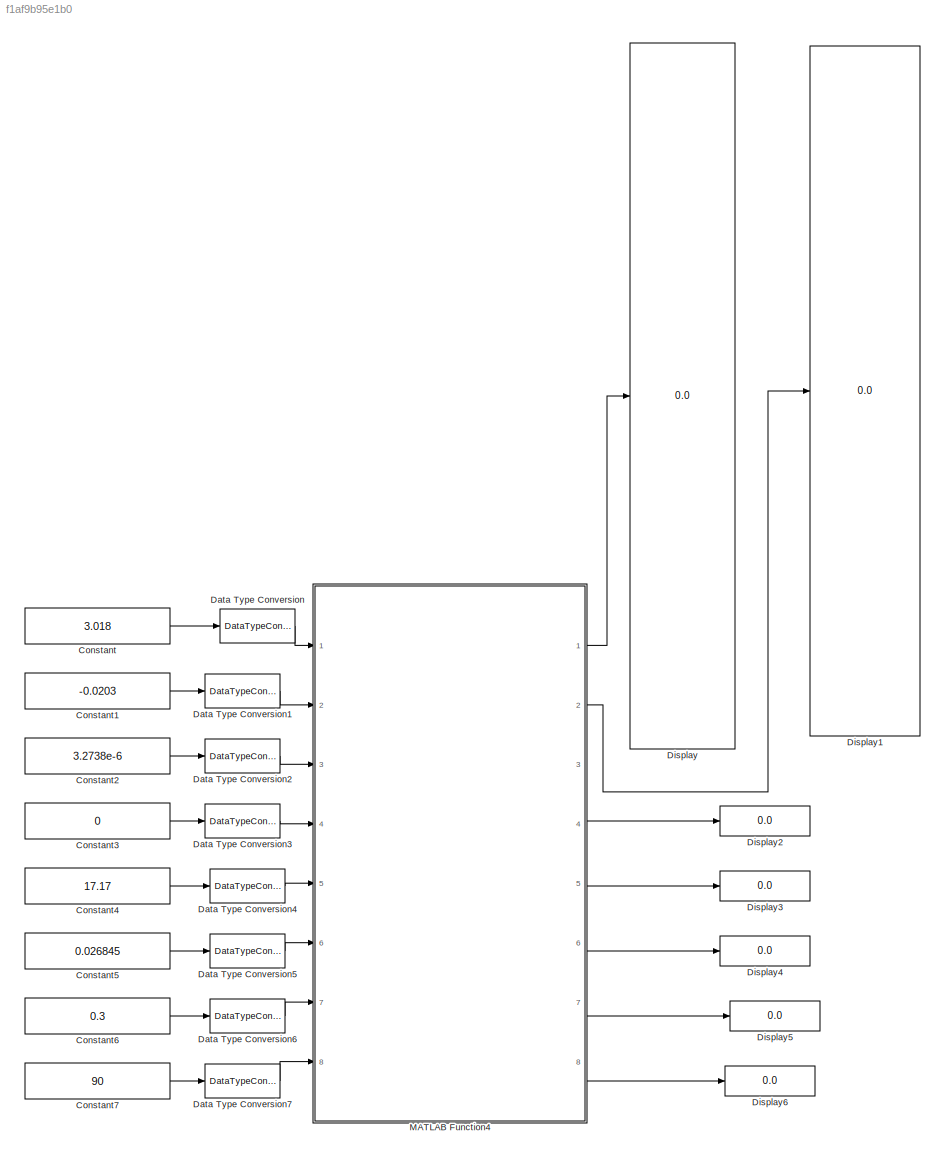
MODEL slx_f1af9b95e1b0
KIND model
CONFIG AbsTol = auto
CONFIG EnableMultiTasking = off
CONFIG FixedStep = 0.02
CONFIG MaxStep = auto
CONFIG MinStep = auto
CONFIG RelTol = 1e-3
CONFIG SampleTimeConstraint = Unconstrained
CONFIG SolverName = FixedStepAuto
CONFIG StartTime = 0.0
CONFIG StopTime = inf
BLOCK [Constant] Constant
  Value = 3.018
BLOCK [Constant] Constant1
  Value = -0.0203
BLOCK [Constant] Constant2
  Value = 3.2738e-6
BLOCK [Constant] Constant3
  Value = 0
BLOCK [Constant] Constant4
  Value = 17.17
BLOCK [Constant] Constant5
  Value = 0.026845
BLOCK [Constant] Constant6
  Value = 0.3
BLOCK [Constant] Constant7
  Value = 90
BLOCK [DataTypeConversion] Data Type Conversion
  OutDataTypeStr = single
  RndMeth = Floor
  SaturateOnIntegerOverflow = off
BLOCK [DataTypeConversion] Data Type Conversion1
  OutDataTypeStr = single
  RndMeth = Floor
  SaturateOnIntegerOverflow = off
BLOCK [DataTypeConversion] Data Type Conversion2
  OutDataTypeStr = single
  RndMeth = Floor
  SaturateOnIntegerOverflow = off
BLOCK [DataTypeConversion] Data Type Conversion3
  OutDataTypeStr = single
  RndMeth = Floor
  SaturateOnIntegerOverflow = off
BLOCK [DataTypeConversion] Data Type Conversion4
  OutDataTypeStr = single
  RndMeth = Floor
  SaturateOnIntegerOverflow = off
BLOCK [DataTypeConversion] Data Type Conversion5
  OutDataTypeStr = single
  RndMeth = Floor
  SaturateOnIntegerOverflow = off
BLOCK [DataTypeConversion] Data Type Conversion6
  OutDataTypeStr = single
  RndMeth = Floor
  SaturateOnIntegerOverflow = off
BLOCK [DataTypeConversion] Data Type Conversion7
  OutDataTypeStr = single
  RndMeth = Floor
  SaturateOnIntegerOverflow = off
BLOCK [Display] Display
  Decimation = 1
  Ports = [1]
BLOCK [Display] Display1
  Decimation = 1
  Ports = [1]
BLOCK [Display] Display2
  Decimation = 1
  Ports = [1]
BLOCK [Display] Display3
  Decimation = 1
  Ports = [1]
BLOCK [Display] Display4
  Decimation = 1
  Ports = [1]
BLOCK [Display] Display5
  Decimation = 1
  Ports = [1]
BLOCK [Display] Display6
  Decimation = 1
  Ports = [1]
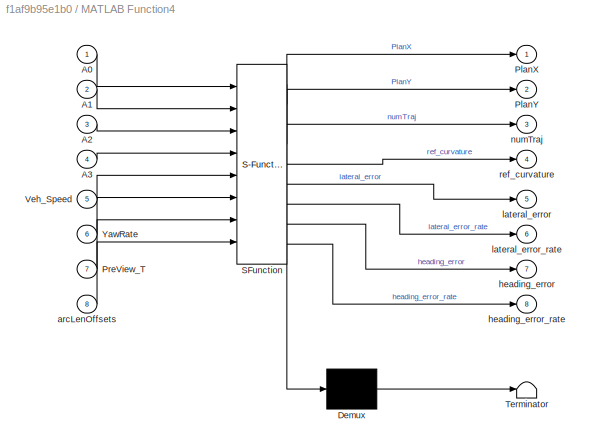
BLOCK [SubSystem] MATLAB Function4
  ErrorFcn = Stateflow.Translate.translate
  PermitHierarchicalResolution = ExplicitOnly
  Ports = [8, 8]
  RequestExecContextInheritance = off
  SFBlockType = MATLAB Function
  TreatAsAtomicUnit = on
BLOCK [Demux] MATLAB Function4/ Demux 
  Outputs = 1
  Ports = [1, 1]
BLOCK [S-Function] MATLAB Function4/ SFunction 
  EnableBusSupport = on
  FunctionName = sf_sfun
  PortCounts = [8 9]
  Ports = [8, 9]
  SFcnIsStateOwnerBlock = off
  SFunctionDeploymentMode = off
  Tag = Stateflow S-Function 7
BLOCK [Terminator] MATLAB Function4/ Terminator 
BLOCK [Inport] MATLAB Function4/A0
BLOCK [Inport] MATLAB Function4/A1
  Port = 2
BLOCK [Inport] MATLAB Function4/A2
  Port = 3
BLOCK [Inport] MATLAB Function4/A3
  Port = 4
BLOCK [Outport] MATLAB Function4/PlanX
BLOCK [Outport] MATLAB Function4/PlanY
  Port = 2
BLOCK [Inport] MATLAB Function4/PreView_T
  Port = 7
BLOCK [Inport] MATLAB Function4/Veh_Speed
  Port = 5
BLOCK [Inport] MATLAB Function4/YawRate
  Port = 6
BLOCK [Inport] MATLAB Function4/arcLenOffsets
  Port = 8
BLOCK [Outport] MATLAB Function4/heading_error
  Port = 7
BLOCK [Outport] MATLAB Function4/heading_error_rate
  Port = 8
BLOCK [Outport] MATLAB Function4/lateral_error
  Port = 5
BLOCK [Outport] MATLAB Function4/lateral_error_rate
  Port = 6
BLOCK [Outport] MATLAB Function4/numTraj
  Port = 3
BLOCK [Outport] MATLAB Function4/ref_curvature
  Port = 4
LINE Constant1:1 -> Data Type Conversion1:1
LINE Constant2:1 -> Data Type Conversion2:1
LINE Constant3:1 -> Data Type Conversion3:1
LINE Constant4:1 -> Data Type Conversion4:1
LINE Constant5:1 -> Data Type Conversion5:1
LINE Constant6:1 -> Data Type Conversion6:1
LINE Constant7:1 -> Data Type Conversion7:1
LINE Constant:1 -> Data Type Conversion:1
LINE Data Type Conversion1:1 -> MATLAB Function4:2
LINE Data Type Conversion2:1 -> MATLAB Function4:3
LINE Data Type Conversion3:1 -> MATLAB Function4:4
LINE Data Type Conversion4:1 -> MATLAB Function4:5
LINE Data Type Conversion5:1 -> MATLAB Function4:6
LINE Data Type Conversion6:1 -> MATLAB Function4:7
LINE Data Type Conversion7:1 -> MATLAB Function4:8
LINE Data Type Conversion:1 -> MATLAB Function4:1
LINE MATLAB Function4:1 -> Display:1
LINE MATLAB Function4:2 -> Display1:1
LINE MATLAB Function4:4 -> Display2:1
LINE MATLAB Function4:5 -> Display3:1
LINE MATLAB Function4:6 -> Display4:1
LINE MATLAB Function4:7 -> Display5:1
LINE MATLAB Function4:8 -> Display6:1
CHART MATLAB Function4 states=1 transitions=1
  STATE_LABEL 'eML_blk_kernel()'
  STATE_LABEL "SCRIPT:\nfunction [PlanX,PlanY,numTraj,ref_curvature,lateral_error,lateral_error_rate,heading_error,heading_error_rate]= fcn(A0,A1,A2,A3,Veh_Speed,YawRate,PreView_T,arcLenOffsets)\n% 参考线离散化\nrx1 = [single(0):single(1):single(9)];\nrx2 = [single(10):20:150];\nrx = cat(2,rx1,rx2);\nry = single((-1)).*(A0 + A1.* rx + A2.* (rx.^2) + A3.* (rx.^3));\nwaypoints = [ry',rx'];\nreferencePath = FrenentReferencePath(...<+1111ch>"
CHART  states=0 transitions=0
